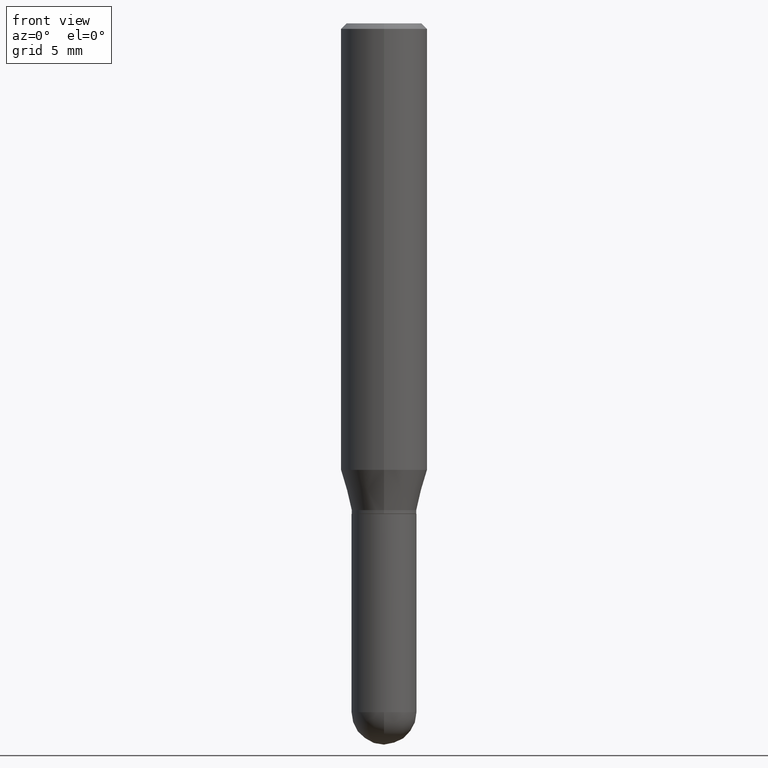
[diagram: clean part render]
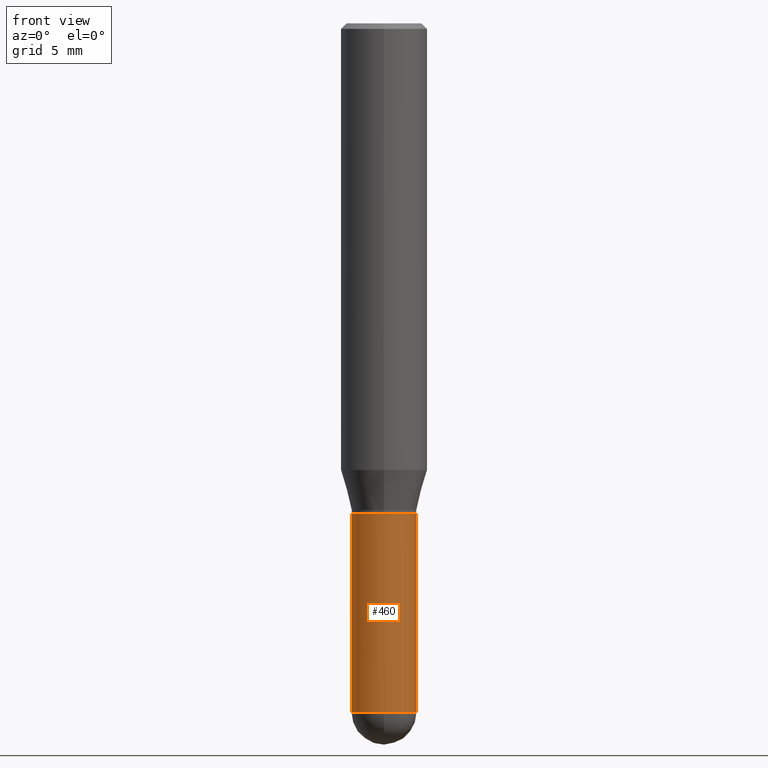
[diagram: same view with one face highlighted and labeled with its STEP entity id]
A machine part, front view. The second image highlights one B-rep face of the part: STEP entity #460.
In plain terms, the highlighted cylindrical surface (edge-blend (fillet) strip) has radius 2.2504 mm, axis along (-0, 0, 1).
Its self-contained STEP definition (entity closure, byte-faithful):
#15 = FACE_OUTER_BOUND ( 'NONE', #53, .T. ) ;
#24 = DIRECTION ( 'NONE',  ( -2.445468806185136597E-29, 3.491481338843145583E-15, 1.000000000000000000 ) ) ;
#37 = CIRCLE ( 'NONE', #407, 0.08859999999999998432 ) ;
#51 = VERTEX_POINT ( 'NONE', #215 ) ;
#53 = EDGE_LOOP ( 'NONE', ( #482, #83, #93, #507, #317 ) ) ;
#80 = VERTEX_POINT ( 'NONE', #348 ) ;
#83 = ORIENTED_EDGE ( 'NONE', *, *, #115, .T. ) ;
#93 = ORIENTED_EDGE ( 'NONE', *, *, #430, .T. ) ;
#95 = CYLINDRICAL_SURFACE ( 'NONE', #435, 0.08859999999999998432 ) ;
#115 = EDGE_CURVE ( 'NONE', #119, #51, #37, .T. ) ;
#119 = VERTEX_POINT ( 'NONE', #197 ) ;
#125 = VERTEX_POINT ( 'NONE', #143 ) ;
#130 = AXIS2_PLACEMENT_3D ( 'NONE', #488, #483, #328 ) ;
#140 = DIRECTION ( 'NONE',  ( -2.445468806185136877E-29, 3.491481338843145188E-15, 1.000000000000000000 ) ) ;
#143 = CARTESIAN_POINT ( 'NONE',  ( -0.08859999999999999820, -4.989125480649882450E-15, -1.338600000000000012 ) ) ;
#147 = DIRECTION ( 'NONE',  ( 1.000000000000000000, -6.982962677686270655E-15, 0.000000000000000000 ) ) ;
#177 = CARTESIAN_POINT ( 'NONE',  ( 0.000000000000000000, 0.000000000000000000, 0.000000000000000000 ) ) ;
#197 = CARTESIAN_POINT ( 'NONE',  ( -0.08859999999999998432, -4.989125480649882450E-15, -1.879899999999999904 ) ) ;
#212 = DIRECTION ( 'NONE',  ( -2.445468806185136877E-29, 3.491481338843145188E-15, 1.000000000000000000 ) ) ;
#214 = CARTESIAN_POINT ( 'NONE',  ( -0.08859999999999998432, 6.295408638834486533E-16, -4.358176489965845566E-30 ) ) ;
#215 = CARTESIAN_POINT ( 'NONE',  ( -6.295408638834025049E-16, -0.08860000000000653464, -1.879899999999999460 ) ) ;
#217 = CARTESIAN_POINT ( 'NONE',  ( 4.597236808747438107E-29, -6.563635768891228653E-15, -1.879899999999999904 ) ) ;
#233 = CARTESIAN_POINT ( 'NONE',  ( 4.597236808747438107E-29, -6.563635768891228653E-15, -1.879899999999999904 ) ) ;
#255 = VERTEX_POINT ( 'NONE', #438 ) ;
#279 = VECTOR ( 'NONE', #212, 39.37007874015748143 ) ;
#288 = CIRCLE ( 'NONE', #409, 0.08859999999999998432 ) ;
#317 = ORIENTED_EDGE ( 'NONE', *, *, #443, .F. ) ;
#328 = DIRECTION ( 'NONE',  ( 1.000000000000000000, -6.982962677686269077E-15, 0.000000000000000000 ) ) ;
#334 = DIRECTION ( 'NONE',  ( 1.000000000000000000, -6.982962677686265922E-15, 4.876176775795935232E-29 ) ) ;
#348 = CARTESIAN_POINT ( 'NONE',  ( 0.08859999999999998432, -6.237356837776335042E-15, -1.879899999999999904 ) ) ;
#373 = DIRECTION ( 'NONE',  ( 1.000000000000000000, -6.982962677686270655E-15, 0.000000000000000000 ) ) ;
#402 = CARTESIAN_POINT ( 'NONE',  ( 0.08859999999999998432, -6.186904932430030515E-16, 4.320292623355198064E-30 ) ) ;
#405 = LINE ( 'NONE', #402, #279 ) ;
#407 = AXIS2_PLACEMENT_3D ( 'NONE', #233, #24, #147 ) ;
#409 = AXIS2_PLACEMENT_3D ( 'NONE', #217, #412, #373 ) ;
#412 = DIRECTION ( 'NONE',  ( -2.445468806185136597E-29, 3.491481338843145583E-15, 1.000000000000000000 ) ) ;
#430 = EDGE_CURVE ( 'NONE', #51, #80, #288, .T. ) ;
#435 = AXIS2_PLACEMENT_3D ( 'NONE', #177, #481, #334 ) ;
#438 = CARTESIAN_POINT ( 'NONE',  ( 0.08859999999999999820, -5.292387413418437689E-15, -1.338600000000000012 ) ) ;
#443 = EDGE_CURVE ( 'NONE', #125, #255, #498, .T. ) ;
#451 = VECTOR ( 'NONE', #140, 39.37007874015748143 ) ;
#460 = ADVANCED_FACE ( 'NONE', ( #15 ), #95, .T. ) ;
#481 = DIRECTION ( 'NONE',  ( -2.445468806185136597E-29, 3.491481338843145583E-15, 1.000000000000000000 ) ) ;
#482 = ORIENTED_EDGE ( 'NONE', *, *, #485, .F. ) ;
#483 = DIRECTION ( 'NONE',  ( -2.445468806185136597E-29, 3.491481338843145583E-15, 1.000000000000000000 ) ) ;
#485 = EDGE_CURVE ( 'NONE', #119, #125, #486, .T. ) ;
#486 = LINE ( 'NONE', #214, #451 ) ;
#488 = CARTESIAN_POINT ( 'NONE',  ( 3.273504543959423913E-29, -4.673696920175434737E-15, -1.338600000000000012 ) ) ;
#493 = EDGE_CURVE ( 'NONE', #80, #255, #405, .T. ) ;
#498 = CIRCLE ( 'NONE', #130, 0.08859999999999999820 ) ;
#507 = ORIENTED_EDGE ( 'NONE', *, *, #493, .T. ) ;